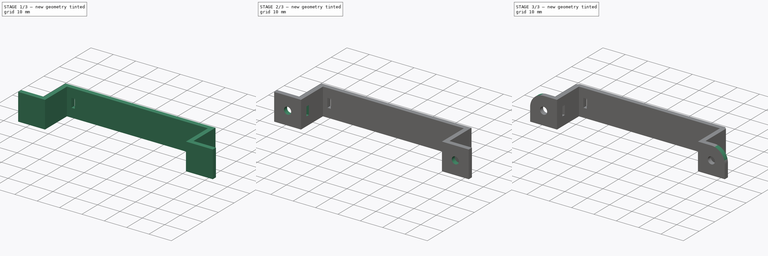
[diagram: build sequence overview — one tinted view per stage of 3, left to right]
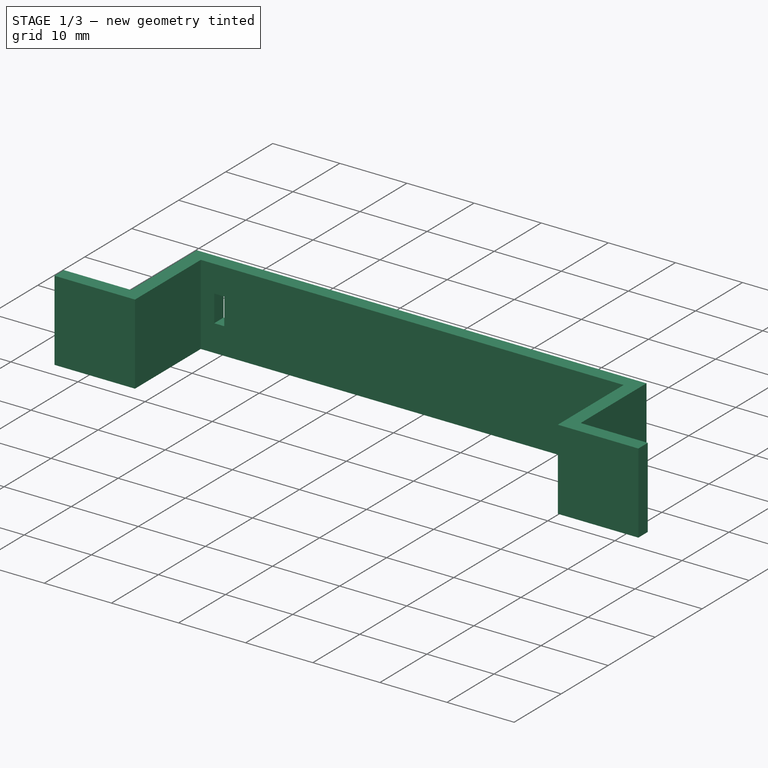
[diagram: stage 1 of 3 — iso view after this stage's code; geometry added in this stage tinted green]
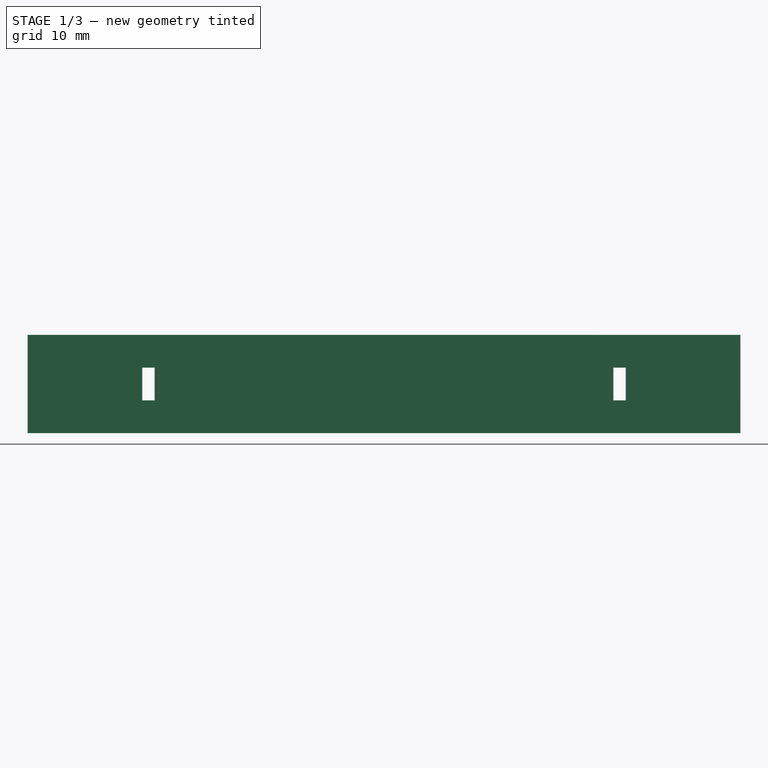
[diagram: stage 1 of 3 — front view after this stage's code; geometry added in this stage tinted green]
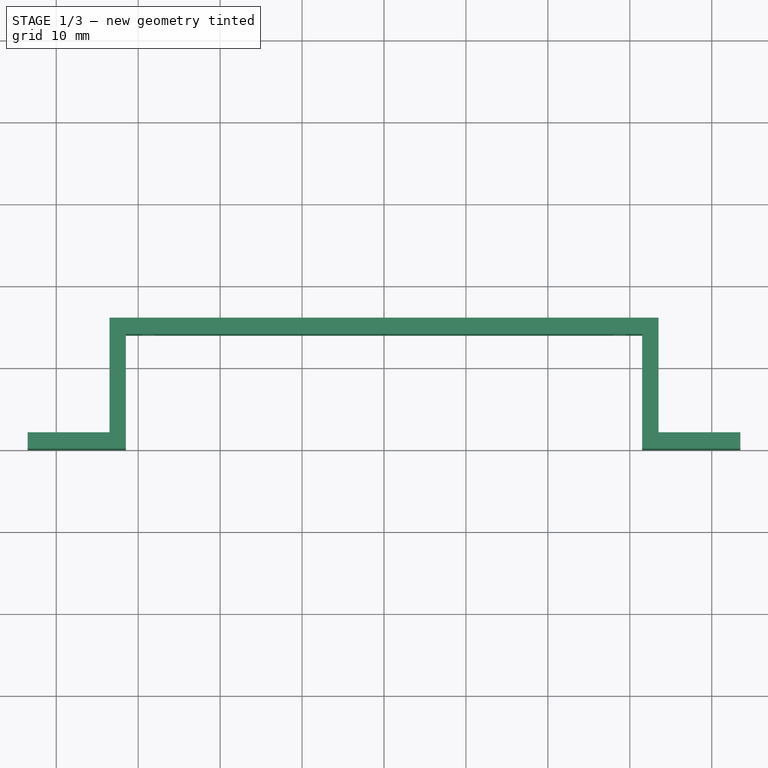
[diagram: stage 1 of 3 — top view after this stage's code; geometry added in this stage tinted green]
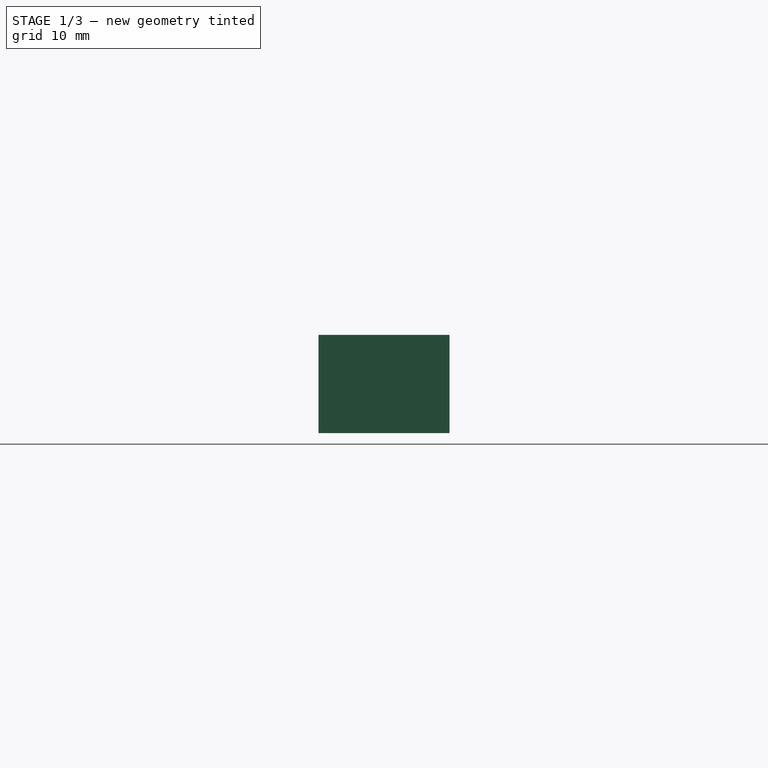
[diagram: stage 1 of 3 — right view after this stage's code; geometry added in this stage tinted green]
FCSTD DOCUMENT  (FreeCAD 0.14R3692 (Git))
Label: Bracket_BatteryHolder-4xAA
License: CC-BY 3.0
LicenseURL: http://creativecommons.org/licenses/by/3.0/
objects: Sketcher::SketchObject×4, PartDesign::Pocket×3, PartDesign::Pad×1, Part::Fillet×1, Part::Chamfer×1, Part::Feature×1
note: 15 computed .brp shape members not serialized (recipe doc carries the construction recipe); baked Part::Feature solids carry a one-line shape summary decoded from their .brp

FEATURE [Sketcher::SketchObject] Sketch  label="BaseSketch"
  sketch-geometry (12):
    g0: LineSegment StartX=-43.5 StartY=0 StartZ=0 EndX=-31.5 EndY=0 EndZ=0
    g1: LineSegment StartX=-31.5 StartY=0 StartZ=0 EndX=-31.5 EndY=14 EndZ=0
    g2: LineSegment StartX=-31.5 StartY=14 StartZ=0 EndX=31.5 EndY=14 EndZ=0
    g3: LineSegment StartX=31.5 StartY=14 StartZ=0 EndX=31.5 EndY=0 EndZ=0
    g4: LineSegment StartX=31.5 StartY=0 StartZ=0 EndX=43.5 EndY=0 EndZ=0
    g5: LineSegment StartX=-43.5 StartY=0 StartZ=0 EndX=-43.5 EndY=2 EndZ=0
    g6: LineSegment StartX=-43.5 StartY=2 StartZ=0 EndX=-33.5 EndY=2 EndZ=0
    g7: LineSegment StartX=-33.5 StartY=2 StartZ=0 EndX=-33.5 EndY=16 EndZ=0
    g8: LineSegment StartX=-33.5 StartY=16 StartZ=0 EndX=33.5 EndY=16 EndZ=0
    g9: LineSegment StartX=33.5 StartY=16 StartZ=0 EndX=33.5 EndY=2 EndZ=0
    g10: LineSegment StartX=33.5 StartY=2 StartZ=0 EndX=43.5 EndY=2 EndZ=0
    g11: LineSegment StartX=43.5 StartY=2 StartZ=0 EndX=43.5 EndY=0 EndZ=0
  constraints (35):
    c: Coincident(g0,g1)
    c: Coincident(g1,g2)
    c: Coincident(g2,g3)
    c: Coincident(g3,g4)
    c: Horizontal(g2)
    c: Horizontal(g0)
    c: Horizontal(g4)
    c: Vertical(g3)
    c: Vertical(g1)
    c: Symmetric(g0,g4,g-2)
    c: PointOnObject(g0,g-1)
    c: Symmetric(g1,g2,g-2)
    c: DistanceX(g2) = 63
    c: DistanceX(g0,g4) = 87
    c: DistanceY(g1) = 14
    c: Coincident(g5,g6)
    c: Coincident(g6,g7)
    c: Coincident(g7,g8)
    c: Coincident(g8,g9)
    c: Coincident(g9,g10)
    c: Coincident(g10,g11)
    c: Coincident(g11,g4)
    c: Coincident(g5,g0)
    c: Vertical(g7)
    c: Vertical(g5)
    c: Vertical(g9)
    c: Vertical(g11)
    c: Horizontal(g8)
    c: Horizontal(g10)
    c: Horizontal(g6)
    c: DistanceY(g5) = 2
    c: Equal(g7,g1)
    c: Equal(g11,g5)
    c: DistanceX(g7,g1) = 2
    c: DistanceX(g2,g8) = 2
FEATURE [PartDesign::Pad] Pad  label="Base"
  Length = 12
  Length2 = 100
  Midplane = true
  Sketch = -> Sketch
  Type = 0
FEATURE [Sketcher::SketchObject] Sketch001  label="ZipTieTopHolesSketch"
  ExternalGeometry = -> [Pad]
  Placement = pos=(0,16,0) rot=(0,0.707107,0.707107;3.14159rad)
  Support = -> Pad [Face9]
  sketch-geometry (8):
    g0: LineSegment StartX=-29.5 StartY=2 StartZ=0 EndX=-28 EndY=2 EndZ=0
    g1: LineSegment StartX=-28 StartY=2 StartZ=0 EndX=-28 EndY=-2 EndZ=0
    g2: LineSegment StartX=-28 StartY=-2 StartZ=0 EndX=-29.5 EndY=-2 EndZ=0
    g3: LineSegment StartX=-29.5 StartY=-2 StartZ=0 EndX=-29.5 EndY=2 EndZ=0
    g4: LineSegment StartX=28 StartY=2 StartZ=0 EndX=29.5 EndY=2 EndZ=0
    g5: LineSegment StartX=29.5 StartY=2 StartZ=0 EndX=29.5 EndY=-2 EndZ=0
    g6: LineSegment StartX=29.5 StartY=-2 StartZ=0 EndX=28 EndY=-2 EndZ=0
    g7: LineSegment StartX=28 StartY=-2 StartZ=0 EndX=28 EndY=2 EndZ=0
  constraints (23):
    c: Coincident(g0,g1)
    c: Coincident(g1,g2)
    c: Coincident(g2,g3)
    c: Coincident(g3,g0)
    c: Horizontal(g0)
    c: Horizontal(g2)
    c: Vertical(g1)
    c: Vertical(g3)
    c: DistanceX(g2) = -1.5
    c: DistanceY(g1) = -4
    c: Symmetric(g0,g1,g-1)
    c: DistanceX(g2,g-3) = -2
    c: Coincident(g4,g5)
    c: Coincident(g5,g6)
    c: Coincident(g6,g7)
    c: Coincident(g7,g4)
    c: Horizontal(g4)
    c: Horizontal(g6)
    c: Vertical(g5)
    c: Vertical(g7)
    c: Equal(g6,g2)
    c: Equal(g7,g1)
    c: Symmetric(g6,g1,g-2)
FEATURE [PartDesign::Pocket] Pocket  label="ZipTieTopHoles"
  Length = 5
  Sketch = -> Sketch001
  Type = 1
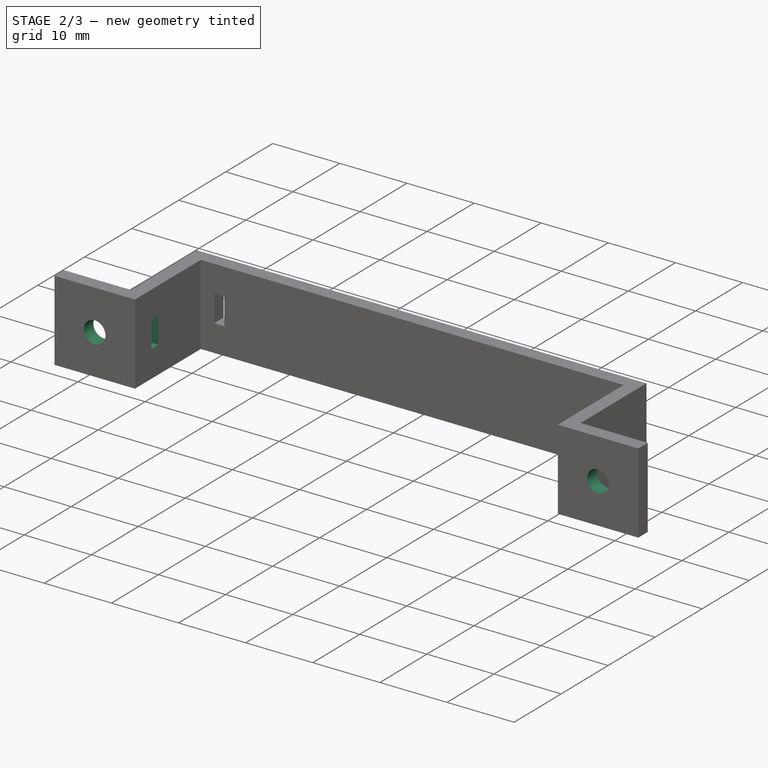
[diagram: stage 2 of 3 — iso view after this stage's code; geometry added in this stage tinted green]
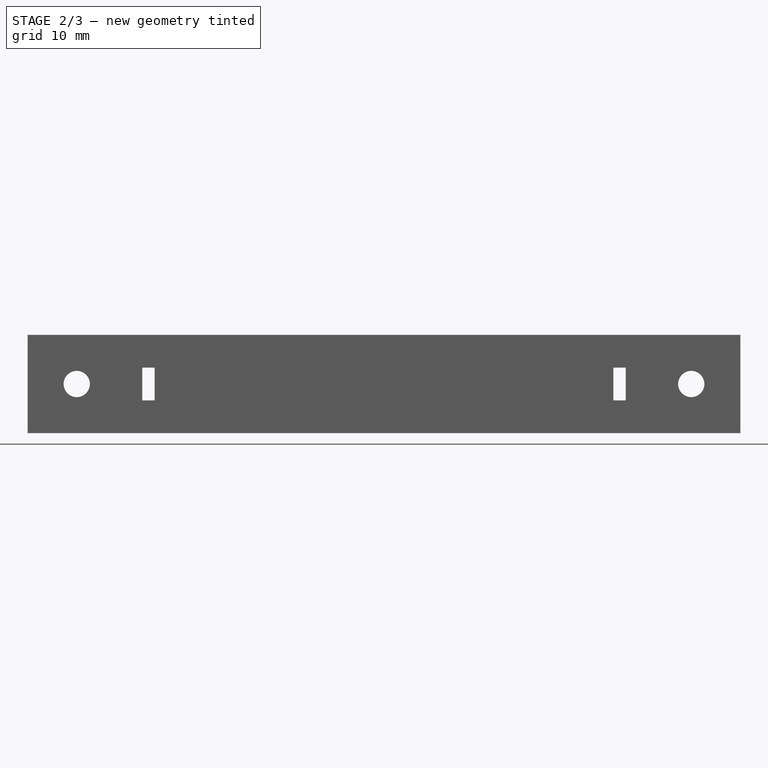
[diagram: stage 2 of 3 — front view after this stage's code; geometry added in this stage tinted green]
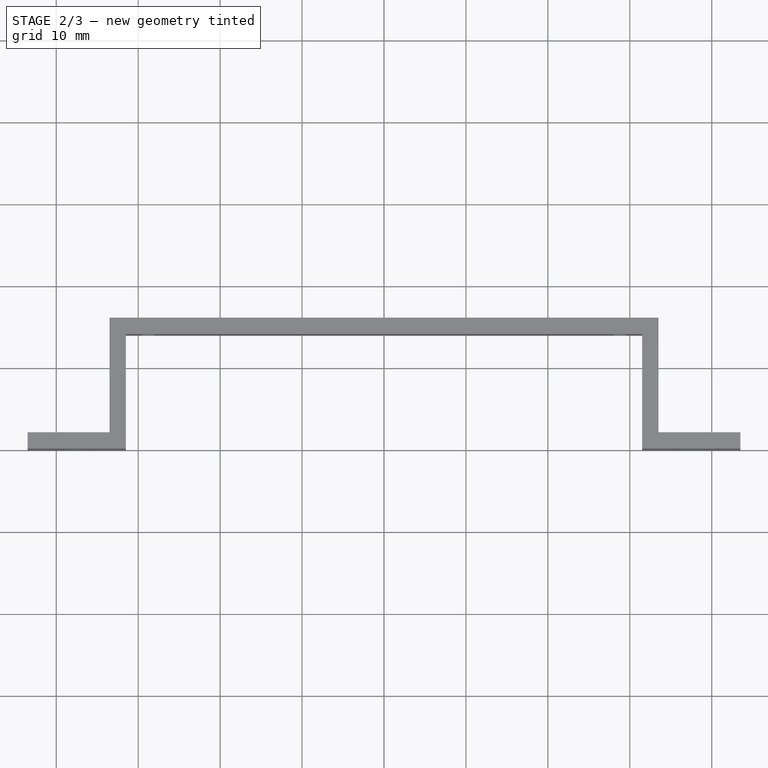
[diagram: stage 2 of 3 — top view after this stage's code; geometry added in this stage tinted green]
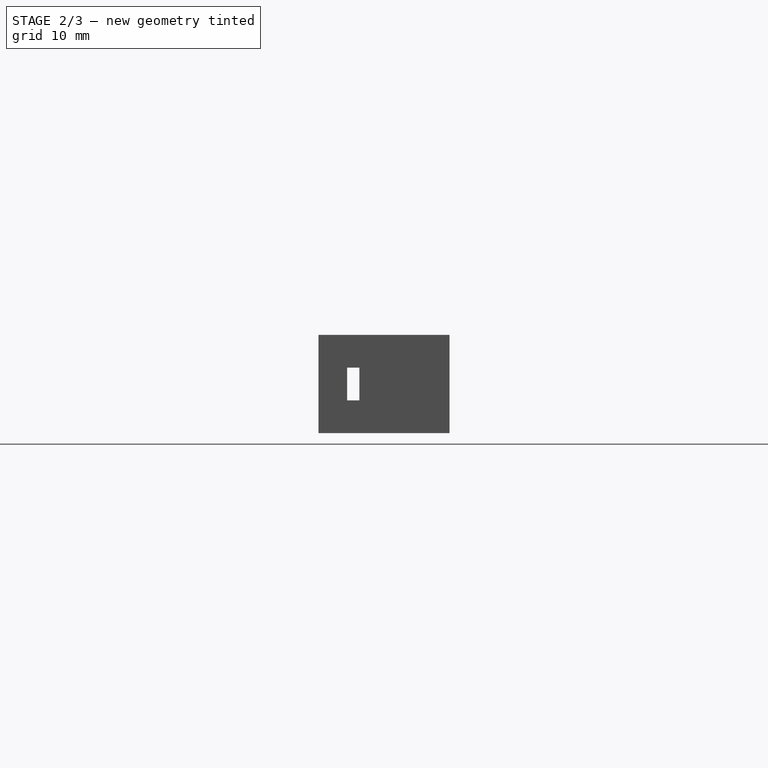
[diagram: stage 2 of 3 — right view after this stage's code; geometry added in this stage tinted green]
FEATURE [Sketcher::SketchObject] Sketch002  label="ZipTieSideHoleSketch"
  ExternalGeometry = -> [Pocket]
  Placement = pos=(-33.5,0,0) rot=(0.57735,-0.57735,-0.57735;2.0944rad)
  Support = -> Pocket [Face14]
  sketch-geometry (4):
    g0: LineSegment StartX=-5 StartY=2 StartZ=0 EndX=-3.5 EndY=2 EndZ=0
    g1: LineSegment StartX=-3.5 StartY=2 StartZ=0 EndX=-3.5 EndY=-2 EndZ=0
    g2: LineSegment StartX=-3.5 StartY=-2 StartZ=0 EndX=-5 EndY=-2 EndZ=0
    g3: LineSegment StartX=-5 StartY=-2 StartZ=0 EndX=-5 EndY=2 EndZ=0
  constraints (12):
    c: Coincident(g0,g1)
    c: Coincident(g1,g2)
    c: Coincident(g2,g3)
    c: Coincident(g3,g0)
    c: Horizontal(g0)
    c: Horizontal(g2)
    c: Vertical(g1)
    c: Vertical(g3)
    c: DistanceX(g2) = -1.5
    c: DistanceY(g1) = -4
    c: Symmetric(g1,g0,g-1)
    c: DistanceX(g2,g-3) = -9
FEATURE [PartDesign::Pocket] Pocket001  label="ZipTieSideHoles"
  Length = 5
  Sketch = -> Sketch002
  Type = 1
FEATURE [Sketcher::SketchObject] Sketch003  label="MountingHolesSketch"
  Placement = pos=(0,0,0) rot=(1,0,0;1.5708rad)
  Support = -> Pocket001 [Face1]
  sketch-geometry (2):
    g0: Circle CenterX=-37.5 CenterY=0 CenterZ=0 NormalX=0 NormalY=0 NormalZ=1 Radius=1.6
    g1: Circle CenterX=37.5 CenterY=0 CenterZ=0 NormalX=0 NormalY=0 NormalZ=1 Radius=1.6
  constraints (5):
    c: Radius(g0) = 1.6
    c: PointOnObject(g0,g-1)
    c: Equal(g1,g0)
    c: Symmetric(g1,g0,g-2)
    c: DistanceX(g1,g0) = -75
FEATURE [PartDesign::Pocket] Pocket002  label="MountingHoles"
  Length = 5
  Sketch = -> Sketch003
  Type = 1
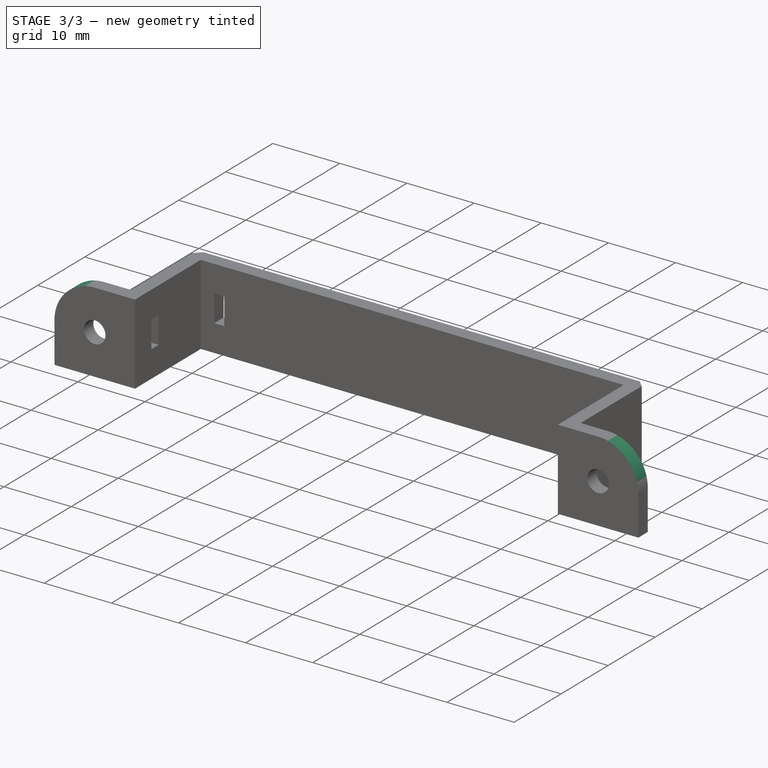
[diagram: stage 3 of 3 — iso view after this stage's code; geometry added in this stage tinted green]
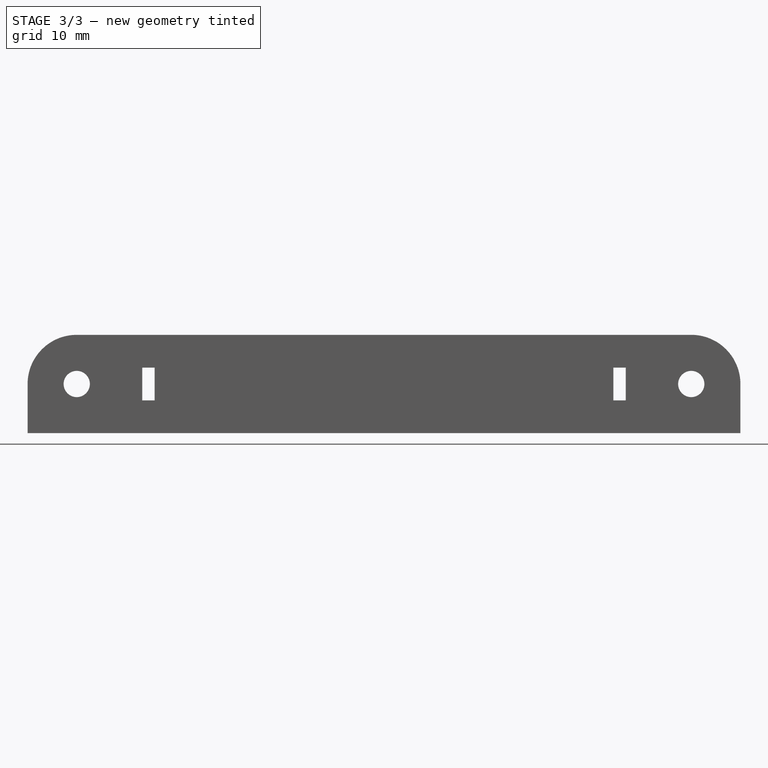
[diagram: stage 3 of 3 — front view after this stage's code; geometry added in this stage tinted green]
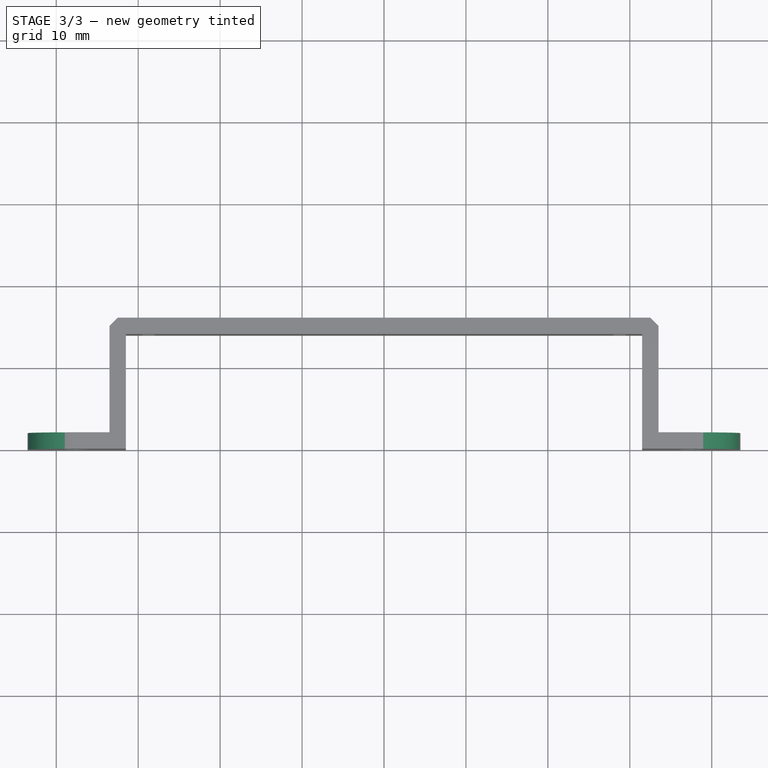
[diagram: stage 3 of 3 — top view after this stage's code; geometry added in this stage tinted green]
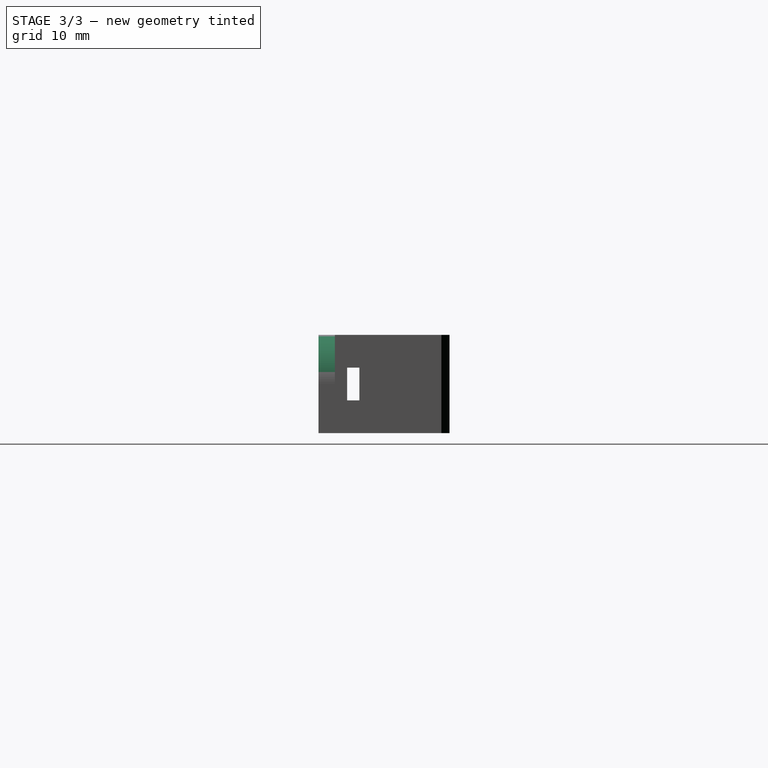
[diagram: stage 3 of 3 — right view after this stage's code; geometry added in this stage tinted green]
FEATURE [Part::Fillet] Fillet  label="MountinHolesRoundedCorner"
  Base = -> Pocket002
  Edges = 2 edges r=6: [Edge4,Edge27]
FEATURE [Part::Chamfer] Chamfer  label="TopChanfer"
  Base = -> Fillet
  Edges = 2 edges r=1: [Edge68,Edge69]
FEATURE [Part::Feature] Chamfer001  label="Bracket_BatteryHolder-4xAA"
  shape: bbox 87 x 16 x 12 mm, 36 faces (baked)
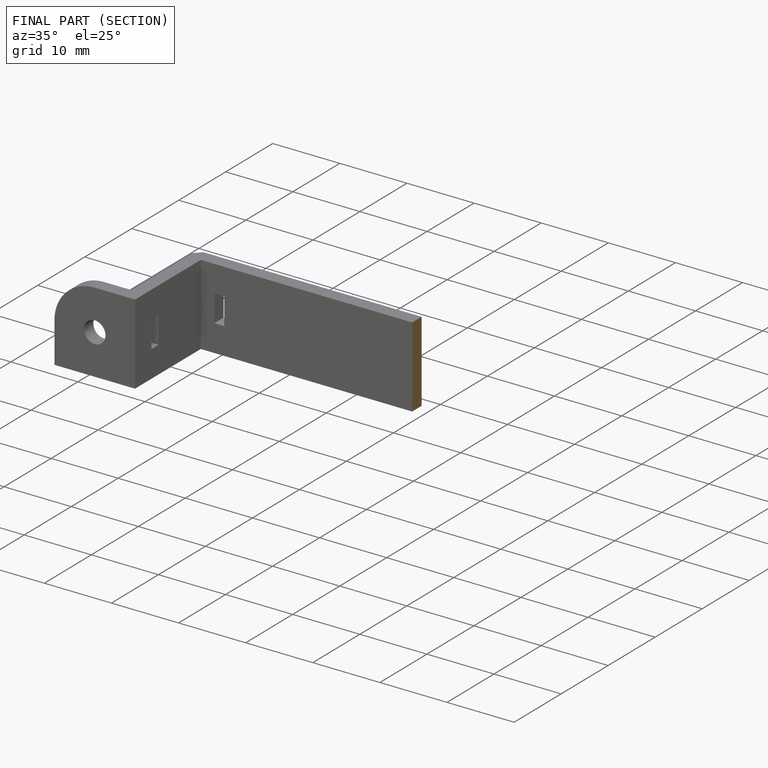
[diagram: finished part — half-section view (interior)]
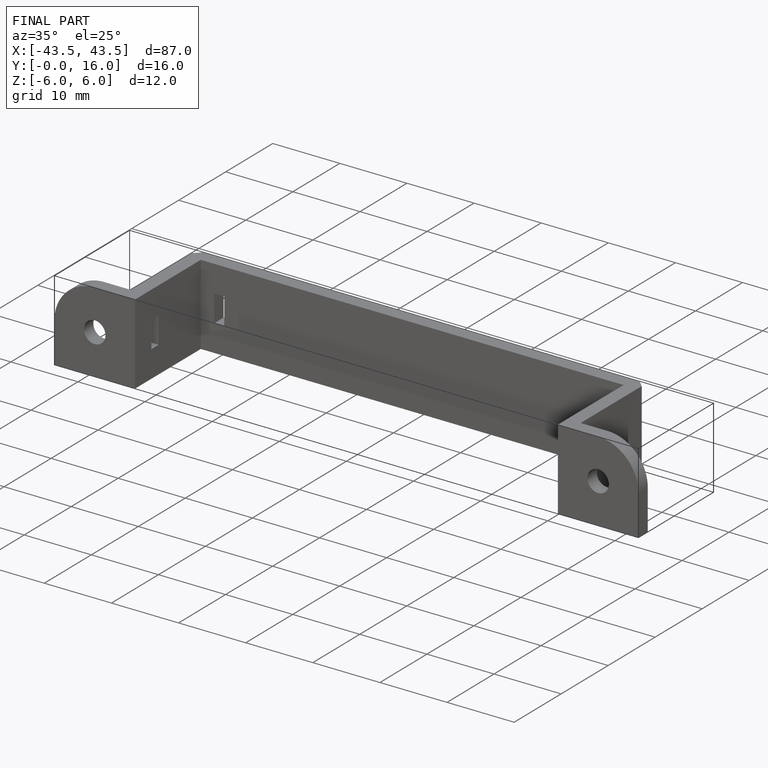
[diagram: finished part — iso view with bounding-box wireframe]
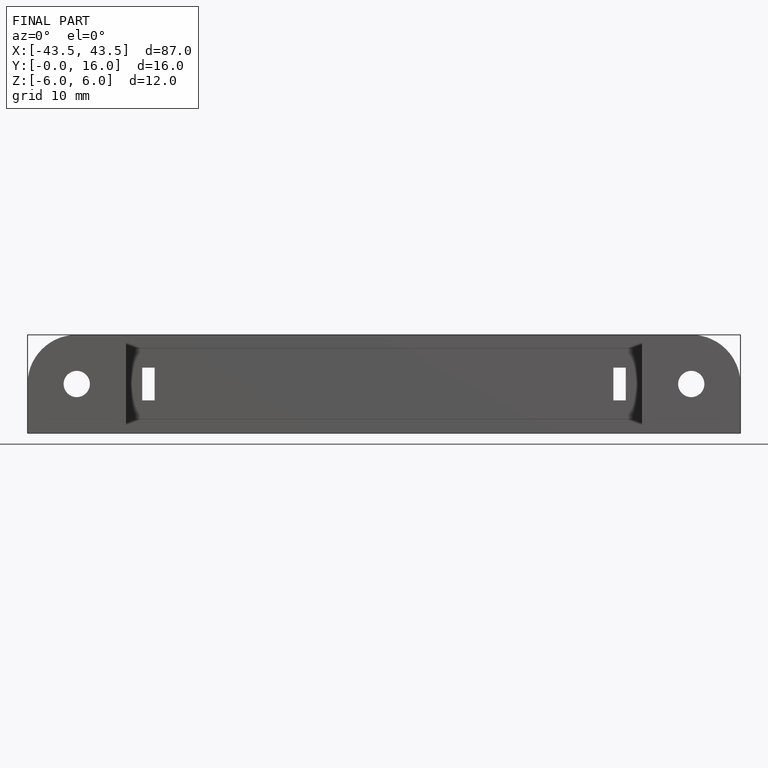
[diagram: finished part — front view with bounding-box wireframe]
